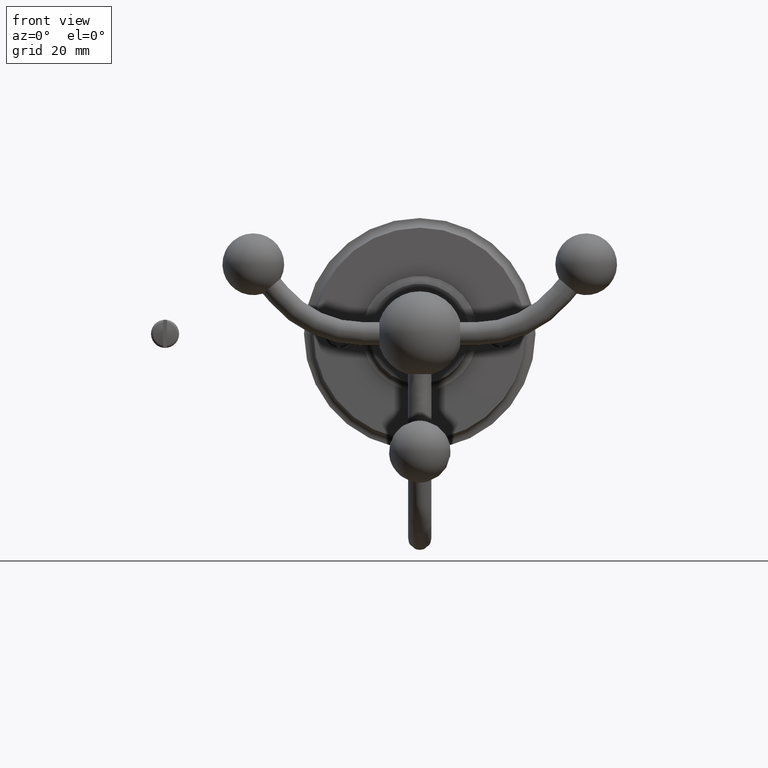
[diagram: clean part render]
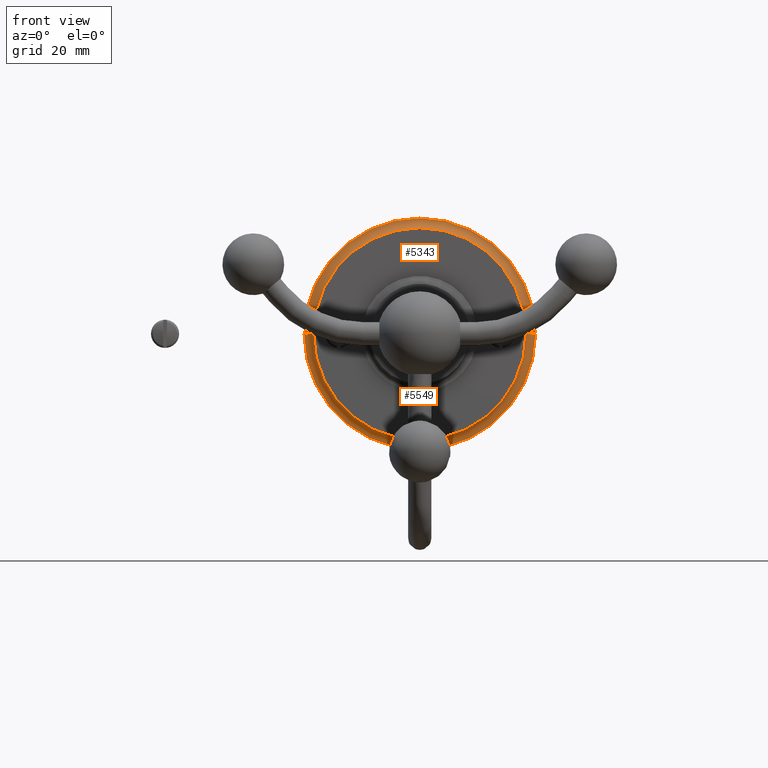
[diagram: same view with one multi-face feature highlighted, each face labeled with its STEP entity id]
A machine part, front view. The highlighted faces form ONE feature: a constant-radius fillet chain: 2 tangent blend faces with common blend radius 2.5 mm. The faces share edges in the B-rep.
Their STEP definitions:
[1] entity #5549 (Torus):
#4684=CARTESIAN_POINT('',(0.E0,3.E0,0.E0));
#4685=DIRECTION('',(0.E0,1.E0,0.E0));
#4686=DIRECTION('',(-1.E0,0.E0,0.E0));
#4687=AXIS2_PLACEMENT_3D('',#4684,#4685,#4686);
#4787=CARTESIAN_POINT('',(3.E1,3.E0,0.E0));
#4788=DIRECTION('',(0.E0,0.E0,1.E0));
#4789=DIRECTION('',(-1.E0,0.E0,0.E0));
#4790=AXIS2_PLACEMENT_3D('',#4787,#4788,#4789);
#4792=CARTESIAN_POINT('',(-3.E1,3.E0,0.E0));
#4793=DIRECTION('',(0.E0,0.E0,-1.E0));
#4794=DIRECTION('',(1.E0,0.E0,0.E0));
#4795=AXIS2_PLACEMENT_3D('',#4792,#4793,#4794);
#4797=CARTESIAN_POINT('',(0.E0,5.E-1,0.E0));
#4798=DIRECTION('',(0.E0,1.E0,0.E0));
#4799=DIRECTION('',(-1.E0,0.E0,0.E0));
#4800=AXIS2_PLACEMENT_3D('',#4797,#4798,#4799);
#5146=CARTESIAN_POINT('',(2.75E1,3.E0,0.E0));
#5147=CARTESIAN_POINT('',(-2.75E1,3.E0,0.E0));
#5148=VERTEX_POINT('',#5146);
#5149=VERTEX_POINT('',#5147);
#5150=CARTESIAN_POINT('',(3.E1,5.E-1,0.E0));
#5151=CARTESIAN_POINT('',(-3.E1,5.E-1,0.E0));
#5152=VERTEX_POINT('',#5150);
#5153=VERTEX_POINT('',#5151);
#5537=CARTESIAN_POINT('',(0.E0,3.E0,0.E0));
#5538=DIRECTION('',(0.E0,1.E0,0.E0));
#5539=DIRECTION('',(1.E0,0.E0,0.E0));
#5540=AXIS2_PLACEMENT_3D('',#5537,#5538,#5539);
#5541=TOROIDAL_SURFACE('',#5540,3.E1,2.5E0);
#5542=ORIENTED_EDGE('',*,*,#5350,.T.);
#5543=ORIENTED_EDGE('',*,*,#5339,.T.);
#5545=ORIENTED_EDGE('',*,*,#5544,.F.);
#5546=ORIENTED_EDGE('',*,*,#5336,.F.);
#5547=EDGE_LOOP('',(#5542,#5543,#5545,#5546));
#5548=FACE_OUTER_BOUND('',#5547,.F.);
#5549=ADVANCED_FACE('',(#5548),#5541,.F.);
#4688=CIRCLE('',#4687,2.75E1);
#4791=CIRCLE('',#4790,2.5E0);
#4796=CIRCLE('',#4795,2.5E0);
#4801=CIRCLE('',#4800,3.E1);
#5336=EDGE_CURVE('',#5149,#5153,#4796,.T.);
#5339=EDGE_CURVE('',#5148,#5152,#4791,.T.);
#5350=EDGE_CURVE('',#5149,#5148,#4688,.T.);
#5544=EDGE_CURVE('',#5153,#5152,#4801,.T.);
[2] entity #5343 (Torus):
#4650=CARTESIAN_POINT('',(0.E0,5.E-1,0.E0));
#4651=DIRECTION('',(0.E0,1.E0,0.E0));
#4652=DIRECTION('',(1.E0,0.E0,0.E0));
#4653=AXIS2_PLACEMENT_3D('',#4650,#4651,#4652);
#4679=CARTESIAN_POINT('',(0.E0,3.E0,0.E0));
#4680=DIRECTION('',(0.E0,1.E0,0.E0));
#4681=DIRECTION('',(1.E0,0.E0,0.E0));
#4682=AXIS2_PLACEMENT_3D('',#4679,#4680,#4681);
#4787=CARTESIAN_POINT('',(3.E1,3.E0,0.E0));
#4788=DIRECTION('',(0.E0,0.E0,1.E0));
#4789=DIRECTION('',(-1.E0,0.E0,0.E0));
#4790=AXIS2_PLACEMENT_3D('',#4787,#4788,#4789);
#4792=CARTESIAN_POINT('',(-3.E1,3.E0,0.E0));
#4793=DIRECTION('',(0.E0,0.E0,-1.E0));
#4794=DIRECTION('',(1.E0,0.E0,0.E0));
#4795=AXIS2_PLACEMENT_3D('',#4792,#4793,#4794);
#5146=CARTESIAN_POINT('',(2.75E1,3.E0,0.E0));
#5147=CARTESIAN_POINT('',(-2.75E1,3.E0,0.E0));
#5148=VERTEX_POINT('',#5146);
#5149=VERTEX_POINT('',#5147);
#5150=CARTESIAN_POINT('',(3.E1,5.E-1,0.E0));
#5151=CARTESIAN_POINT('',(-3.E1,5.E-1,0.E0));
#5152=VERTEX_POINT('',#5150);
#5153=VERTEX_POINT('',#5151);
#5329=CARTESIAN_POINT('',(0.E0,3.E0,0.E0));
#5330=DIRECTION('',(0.E0,1.E0,0.E0));
#5331=DIRECTION('',(1.E0,0.E0,0.E0));
#5332=AXIS2_PLACEMENT_3D('',#5329,#5330,#5331);
#5333=TOROIDAL_SURFACE('',#5332,3.E1,2.5E0);
#5335=ORIENTED_EDGE('',*,*,#5334,.T.);
#5337=ORIENTED_EDGE('',*,*,#5336,.T.);
#5338=ORIENTED_EDGE('',*,*,#5319,.F.);
#5340=ORIENTED_EDGE('',*,*,#5339,.F.);
#5341=EDGE_LOOP('',(#5335,#5337,#5338,#5340));
#5342=FACE_OUTER_BOUND('',#5341,.F.);
#5343=ADVANCED_FACE('',(#5342),#5333,.F.);
#4654=CIRCLE('',#4653,3.E1);
#4683=CIRCLE('',#4682,2.75E1);
#4791=CIRCLE('',#4790,2.5E0);
#4796=CIRCLE('',#4795,2.5E0);
#5319=EDGE_CURVE('',#5152,#5153,#4654,.T.);
#5334=EDGE_CURVE('',#5148,#5149,#4683,.T.);
#5336=EDGE_CURVE('',#5149,#5153,#4796,.T.);
#5339=EDGE_CURVE('',#5148,#5152,#4791,.T.);